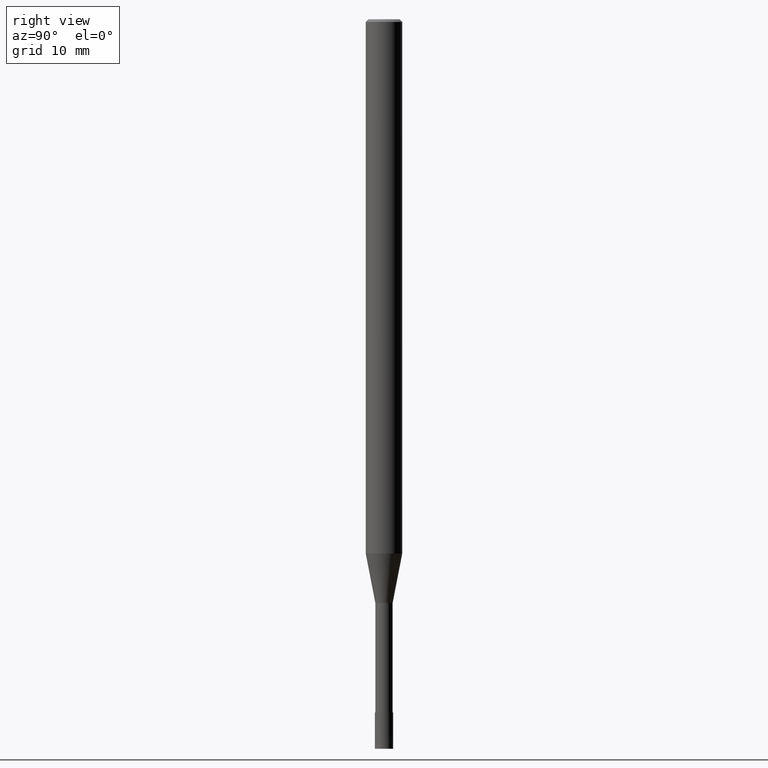
[diagram: clean part render]
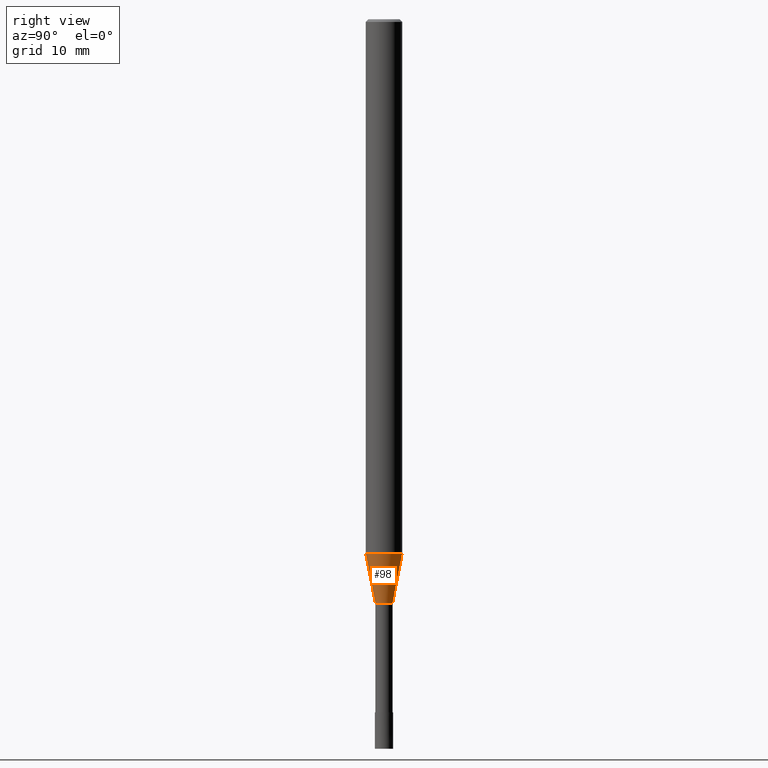
[diagram: same view with one face highlighted and labeled with its STEP entity id]
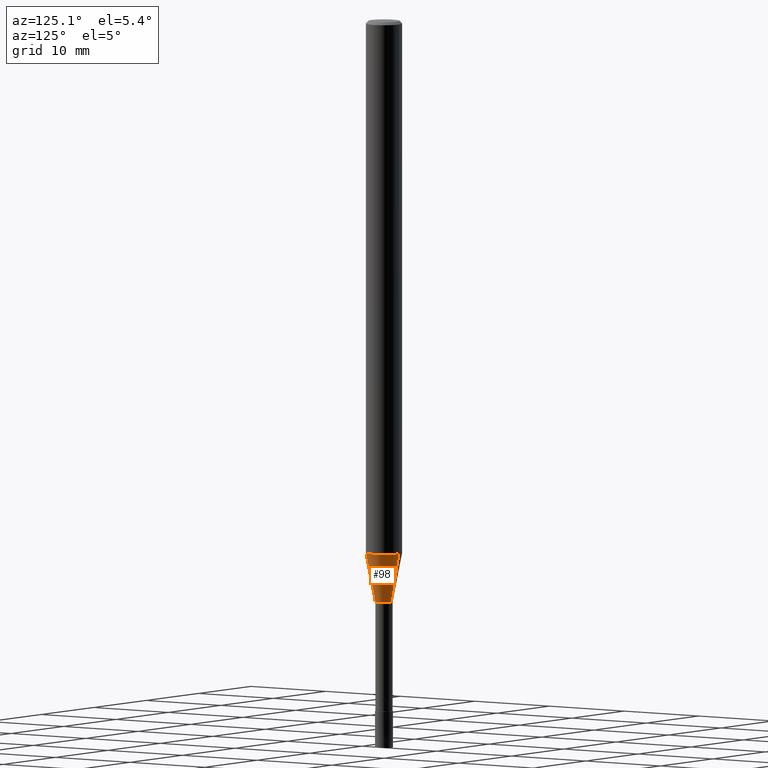
[diagram: same view with one face highlighted and labeled with its STEP entity id]
A machine part, right view. The second image highlights one B-rep face of the part: STEP entity #98.
A second angle (auxiliary view) of the same face is appended — the face is thin or edge-on in the first view.
In plain terms, the highlighted conical surface has half-angle 11 deg.
Its self-contained STEP definition (entity closure, byte-faithful):
#98=ADVANCED_FACE('',(#236),#237,.T.);
#120=EDGE_CURVE('',#160,#122,#264,.T.);
#122=VERTEX_POINT('',#266);
#126=EDGE_CURVE('',#196,#190,#271,.T.);
#150=EDGE_CURVE('',#160,#190,#298,.T.);
#160=VERTEX_POINT('',#309);
#190=VERTEX_POINT('',#340);
#196=VERTEX_POINT('',#347);
#198=EDGE_CURVE('',#122,#196,#349,.T.);
#236=FACE_OUTER_BOUND('',#381,.T.);
#237=CONICAL_SURFACE('',#382,1.47495,0.191978649183841);
#264=LINE('',#417,#418);
#266=CARTESIAN_POINT('',(0.0,0.94995,-64.0));
#271=LINE('',#426,#427);
#298=CIRCLE('',#461,1.99995);
#309=CARTESIAN_POINT('',(0.0,1.99995,-58.598));
#340=CARTESIAN_POINT('',(2.44915147732706E-016,-1.99995,-58.598));
#347=CARTESIAN_POINT('',(1.16331480581357E-016,-0.94995,-64.0));
#349=CIRCLE('',#526,0.94995);
#381=EDGE_LOOP('',(#555,#556,#557,#558));
#382=AXIS2_PLACEMENT_3D('',#559,#560,#561);
#417=CARTESIAN_POINT('',(-1.80623314157032E-016,1.47495,-61.299));
#418=VECTOR('',#603,1.0);
#426=CARTESIAN_POINT('',(1.80623314157031E-016,-1.47495,-61.299));
#427=VECTOR('',#610,1.0);
#461=AXIS2_PLACEMENT_3D('',#641,#642,#643);
#526=AXIS2_PLACEMENT_3D('',#689,#690,#691);
#555=ORIENTED_EDGE('',*,*,#120,.F.);
#556=ORIENTED_EDGE('',*,*,#150,.T.);
#557=ORIENTED_EDGE('',*,*,#126,.F.);
#558=ORIENTED_EDGE('',*,*,#198,.F.);
#559=CARTESIAN_POINT('',(0.0,0.0,-61.299));
#560=DIRECTION('',(-0.0,-0.0,1.0));
#561=DIRECTION('',(0.0,1.0,0.0));
#603=DIRECTION('',(2.33656809909205E-017,-0.190801565890859,-0.981628627564211));
#610=DIRECTION('',(2.33656809909205E-017,-0.190801565890859,0.981628627564211));
#641=CARTESIAN_POINT('',(0.0,0.0,-58.598));
#642=DIRECTION('',(0.0,0.0,-1.0));
#643=DIRECTION('',(0.0,1.0,0.0));
#689=CARTESIAN_POINT('',(0.0,0.0,-64.0));
#690=DIRECTION('',(0.0,0.0,-1.0));
#691=DIRECTION('',(0.0,1.0,0.0));